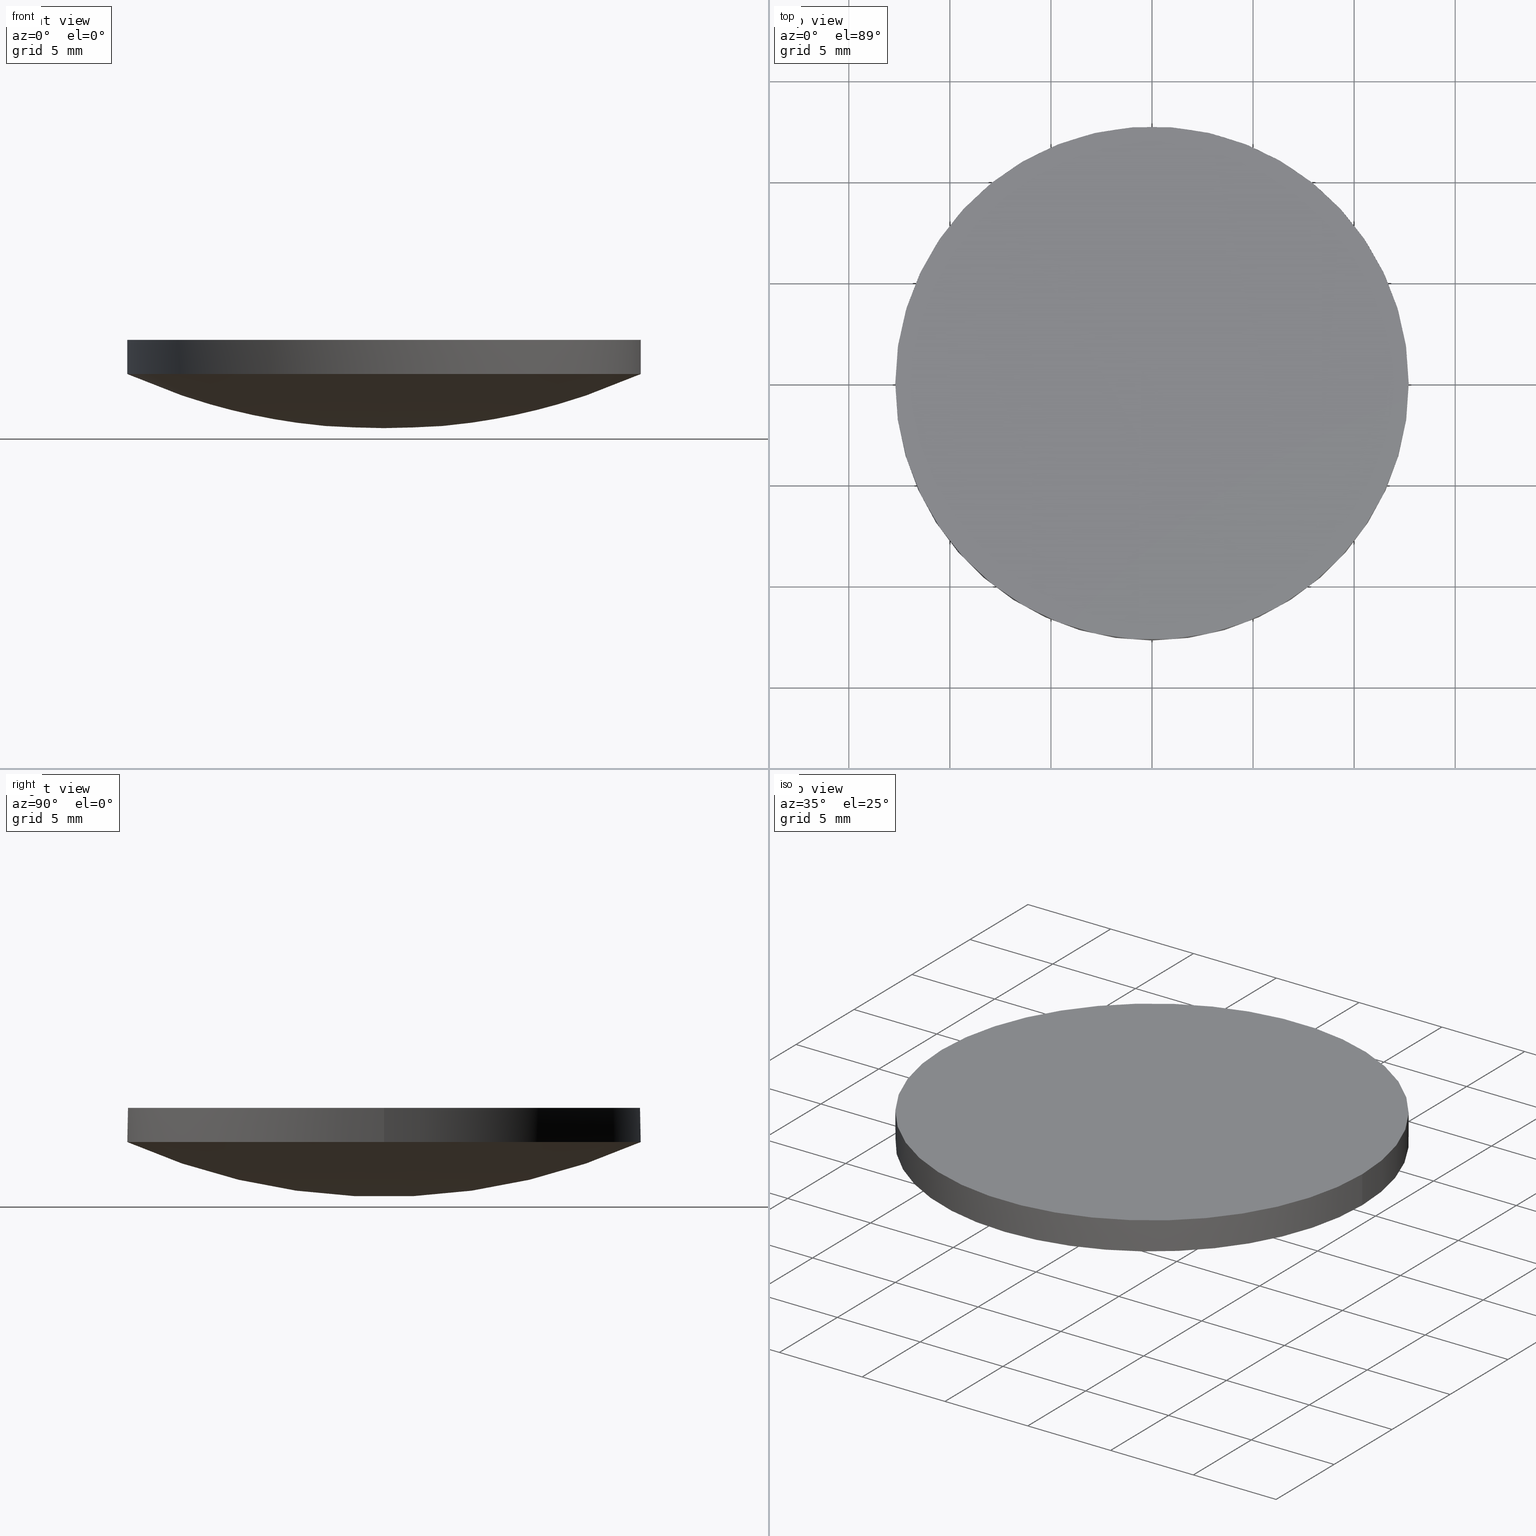
[diagram: canonical four-view strip — front | top / right | iso, engineering-drawing reading convention]
A machine part, canonical four-view strip (front | top / right | iso — engineering-drawing reading convention). The complete STEP part file that produces these views, byte-faithful:
ISO-10303-21;
HEADER;
FILE_DESCRIPTION (( 'STEP AP203' ),
    '1' );
FILE_NAME ('110-0211E BK7 pl-cx 25.4 F60.STEP',
    '2018-12-21T06:50:57',
    ( '' ),
    ( '' ),
    'SwSTEP 2.0',
    'SolidWorks 2017',
    '' );
FILE_SCHEMA (( 'CONFIG_CONTROL_DESIGN' ));
ENDSEC;

DATA;
#1 = PERSON_AND_ORGANIZATION ( #227, #72 ) ;
#2 = CARTESIAN_POINT ( 'NONE',  ( -9.017284531906975400, 4.551507654516060000, -0.02610583074397926400 ) ) ;
#3 =( NAMED_UNIT ( * ) SI_UNIT ( $, .STERADIAN. ) SOLID_ANGLE_UNIT ( ) );
#4 = DATE_TIME_ROLE ( 'classification_date' ) ;
#5 = APPROVAL_DATE_TIME ( #144, #28 ) ;
#6 = CLOSED_SHELL ( 'NONE', ( #155, #9, #137, #101, #168 ) ) ;
#7 = APPLICATION_CONTEXT ( 'configuration controlled 3d designs of mechanical parts and assemblies' ) ;
#8 = PERSON_AND_ORGANIZATION_ROLE ( 'design_owner' ) ;
#9 = ADVANCED_FACE ( 'NONE', ( #156 ), #63, .T. ) ;
#10 = AXIS2_PLACEMENT_3D ( 'NONE', #194, #118, #136 ) ;
#11 = DIRECTION ( 'NONE',  ( 0.0000000000000000000, 0.0000000000000000000, 1.000000000000000000 ) ) ;
#12 = PERSON_AND_ORGANIZATION ( #227, #72 ) ;
#13 = CARTESIAN_POINT ( 'NONE',  ( -4.025857862907046500, -12.84315335437655700, 2.773786638847755900 ) ) ;
#14 = ORIENTED_EDGE ( 'NONE', *, *, #39, .F. ) ;
#15 = CARTESIAN_POINT ( 'NONE',  ( -1.734723475976807100E-015, 4.551507654516056400, -0.9830071144021392800 ) ) ;
#16 = CIRCLE ( 'NONE', #153, 12.69999999999999900 ) ;
#17 = CARTESIAN_POINT ( 'NONE',  ( 3.469446951953614200E-015, 12.84315335437657000, 2.773786638847761700 ) ) ;
#18 = LINE ( 'NONE', #204, #115 ) ;
#19 = CARTESIAN_POINT ( 'NONE',  ( 4.559414760900651200, 4.551507654516051100, -0.9830071144021402800 ) ) ;
#20 = CARTESIAN_POINT ( 'NONE',  ( 4.559414760900649500, -4.551507654516049300, -0.9830071144021426100 ) ) ;
#21 = APPROVAL_ROLE ( '' ) ;
#22 = APPROVAL_PERSON_ORGANIZATION ( #187, #165, #25 ) ;
#23 = FACE_OUTER_BOUND ( 'NONE', #190, .T. ) ;
#24 = EDGE_CURVE ( 'NONE', #171, #135, #214, .T. ) ;
#25 = APPROVAL_ROLE ( '' ) ;
#26 = DATE_AND_TIME ( #124, #230 ) ;
#27 = ORIENTED_EDGE ( 'NONE', *, *, #175, .F. ) ;
#28 = APPROVAL ( #218, 'UNSPECIFIED' ) ;
#29 = ORIENTED_EDGE ( 'NONE', *, *, #175, .T. ) ;
#30 = DESIGN_CONTEXT ( 'detailed design', #97, 'design' ) ;
#31 = EDGE_CURVE ( 'NONE', #60, #202, #120, .T. ) ;
#32 = DIRECTION ( 'NONE',  ( 1.000000000000000000, 0.0000000000000000000, 0.0000000000000000000 ) ) ;
#33 = FACE_OUTER_BOUND ( 'NONE', #158, .T. ) ;
#34 = LOCAL_TIME ( 8, 50, 57.00000000000000000, #170 ) ;
#35 = CARTESIAN_POINT ( 'NONE',  ( 11.63325800064605400, 12.84315335437655900, 5.270916453259492800 ) ) ;
#36 = DIRECTION ( 'NONE',  ( -0.0000000000000000000, -0.0000000000000000000, -1.000000000000000000 ) ) ;
#37 = CARTESIAN_POINT ( 'NONE',  ( 11.63325800064604600, -12.84315335437656300, 5.270916453259489200 ) ) ;
#38 = CALENDAR_DATE ( 2018, 21, 12 ) ;
#39 = EDGE_CURVE ( 'NONE', #202, #103, #74, .T. ) ;
#40 = DATE_TIME_ROLE ( 'creation_date' ) ;
#41 =( BOUNDED_SURFACE ( )  B_SPLINE_SURFACE ( 3, 3, ( 
 ( #196, #112, #179, #37 ),
 ( #178, #20, #73, #216 ),
 ( #57, #19, #93, #195 ),
 ( #92, #234, #148, #35 ) ),
 .UNSPECIFIED., .F., .F., .T. ) 
 B_SPLINE_SURFACE_WITH_KNOTS ( ( 4, 4 ),
 ( 4, 4 ),
 ( 0.0000000000000000000, 1.000000000000000000 ),
 ( 0.0000000000000000000, 1.000000000000000000 ),
 .UNSPECIFIED. ) 
 GEOMETRIC_REPRESENTATION_ITEM ( )  RATIONAL_B_SPLINE_SURFACE ( (
 ( 1.000000000000000000, 0.9851523356659553900, 0.9851523356659553900, 1.000000000000000000),
 ( 0.9405786923982915000, 0.9266132956938071300, 0.9266132956938071300, 0.9405786923982915000),
 ( 0.9405786923982915000, 0.9266132956938071300, 0.9266132956938071300, 0.9405786923982915000),
 ( 1.000000000000000000, 0.9851523356659553900, 0.9851523356659553900, 1.000000000000000000) ) ) 
 REPRESENTATION_ITEM ( '' )  SURFACE ( )  );
#42 = PERSON_AND_ORGANIZATION_ROLE ( 'design_supplier' ) ;
#43 = COORDINATED_UNIVERSAL_TIME_OFFSET ( 2, 0, .AHEAD. ) ;
#44 = AXIS2_PLACEMENT_3D ( 'NONE', #123, #83, #32 ) ;
#45 = APPROVAL_PERSON_ORGANIZATION ( #127, #28, #21 ) ;
#46 = LOCAL_TIME ( 8, 50, 57.00000000000000000, #43 ) ;
#47 = ORIENTED_EDGE ( 'NONE', *, *, #157, .F. ) ;
#48 = DIRECTION ( 'NONE',  ( 1.000000000000000000, 0.0000000000000000000, 0.0000000000000000000 ) ) ;
#49 = PRODUCT_DEFINITION ( 'UNKNOWN', '', #111, #30 ) ;
#50 = PERSON_AND_ORGANIZATION ( #227, #72 ) ;
#51 = EDGE_LOOP ( 'NONE', ( #47, #147, #129, #69, #27 ) ) ;
#52 = DIRECTION ( 'NONE',  ( 0.0000000000000000000, 0.0000000000000000000, 1.000000000000000000 ) ) ;
#53 =( LENGTH_UNIT ( ) NAMED_UNIT ( * ) SI_UNIT ( .MILLI., .METRE. ) );
#54 = CARTESIAN_POINT ( 'NONE',  ( 4.996003610813200500E-016, 2.442490654175340100E-015, 2.709361147626399900 ) ) ;
#55 = CC_DESIGN_PERSON_AND_ORGANIZATION_ASSIGNMENT ( #1, #119, ( #111 ) ) ;
#56 = ORIENTED_EDGE ( 'NONE', *, *, #221, .F. ) ;
#57 = CARTESIAN_POINT ( 'NONE',  ( 9.265560802488689400E-015, 4.551507654516052000, -0.9830071144021401700 ) ) ;
#58 = APPROVAL_STATUS ( 'not_yet_approved' ) ;
#59 = CC_DESIGN_PERSON_AND_ORGANIZATION_ASSIGNMENT ( #79, #8, ( #174 ) ) ;
#60 = VERTEX_POINT ( 'NONE', #228 ) ;
#61 = CC_DESIGN_APPROVAL ( #28, ( #49 ) ) ;
#62 = CARTESIAN_POINT ( 'NONE',  ( 12.69999999999999900, 2.442490654175340100E-015, 4.400000000000000400 ) ) ;
#63 = CYLINDRICAL_SURFACE ( 'NONE', #138, 12.69999999999999900 ) ;
#64 = AXIS2_PLACEMENT_3D ( 'NONE', #159, #52, #149 ) ;
#65 = ORIENTED_EDGE ( 'NONE', *, *, #24, .F. ) ;
#66 = CARTESIAN_POINT ( 'NONE',  ( -9.017284531906979000, -4.551507654516044000, -0.02610583074398273300 ) ) ;
#67 = DIRECTION ( 'NONE',  ( -0.0000000000000000000, -0.0000000000000000000, -1.000000000000000000 ) ) ;
#68 = COORDINATED_UNIVERSAL_TIME_OFFSET ( 2, 0, .AHEAD. ) ;
#69 = ORIENTED_EDGE ( 'NONE', *, *, #117, .F. ) ;
#70 = CC_DESIGN_PERSON_AND_ORGANIZATION_ASSIGNMENT ( #99, #200, ( #176 ) ) ;
#71 = DIRECTION ( 'NONE',  ( -0.0000000000000000000, -0.0000000000000000000, -1.000000000000000000 ) ) ;
#72 = ORGANIZATION ( 'UNSPECIFIED', 'UNSPECIFIED', '' ) ;
#73 = CARTESIAN_POINT ( 'NONE',  ( 9.017284531906982500, -4.551507654516050200, -0.02610583074398489500 ) ) ;
#74 = CIRCLE ( 'NONE', #108, 12.69999999999999900 ) ;
#75 = CARTESIAN_POINT ( 'NONE',  ( -7.962053846506552000, 12.84315335437657200, 3.618708357722064700 ) ) ;
#76 = PLANE ( 'NONE',  #64 ) ;
#77 = PRODUCT_DEFINITION_SHAPE ( 'NONE', 'NONE',  #49 ) ;
#78 = CC_DESIGN_APPROVAL ( #98, ( #176 ) ) ;
#79 = PERSON_AND_ORGANIZATION ( #227, #72 ) ;
#80 = SECURITY_CLASSIFICATION_LEVEL ( 'unclassified' ) ;
#81 = PRODUCT_RELATED_PRODUCT_CATEGORY ( 'detail', '', ( #174 ) ) ;
#82 = CC_DESIGN_DATE_AND_TIME_ASSIGNMENT ( #182, #40, ( #49 ) ) ;
#83 = DIRECTION ( 'NONE',  ( -0.0000000000000000000, -0.0000000000000000000, -1.000000000000000000 ) ) ;
#84 = CARTESIAN_POINT ( 'NONE',  ( 4.996003610813200500E-016, 2.442490654175340100E-015, 2.709361147626399900 ) ) ;
#85 = ORIENTED_EDGE ( 'NONE', *, *, #191, .T. ) ;
#86 = CARTESIAN_POINT ( 'NONE',  ( -4.559414760900645900, -4.551507654516046700, -0.9830071144021413900 ) ) ;
#87 = EDGE_CURVE ( 'NONE', #171, #60, #188, .T. ) ;
#88 = LOCAL_TIME ( 8, 50, 57.00000000000000000, #95 ) ;
#89 = SHAPE_DEFINITION_REPRESENTATION ( #77, #113 ) ;
#90 = DIRECTION ( 'NONE',  ( 1.000000000000000000, 0.0000000000000000000, 0.0000000000000000000 ) ) ;
#91 = CC_DESIGN_PERSON_AND_ORGANIZATION_ASSIGNMENT ( #50, #184, ( #49 ) ) ;
#92 = CARTESIAN_POINT ( 'NONE',  ( 1.107271206032240700E-014, 12.84315335437656300, 2.773786638847756300 ) ) ;
#93 = CARTESIAN_POINT ( 'NONE',  ( 9.017284531906984300, 4.551507654516051100, -0.02610583074398207400 ) ) ;
#94 =( GEOMETRIC_REPRESENTATION_CONTEXT ( 3 ) GLOBAL_UNCERTAINTY_ASSIGNED_CONTEXT ( ( #193 ) ) GLOBAL_UNIT_ASSIGNED_CONTEXT ( ( #53, #96, #3 ) ) REPRESENTATION_CONTEXT ( 'NONE', 'WORKASPACE' ) );
#95 = COORDINATED_UNIVERSAL_TIME_OFFSET ( 2, 0, .AHEAD. ) ;
#96 =( NAMED_UNIT ( * ) PLANE_ANGLE_UNIT ( ) SI_UNIT ( $, .RADIAN. ) );
#97 = APPLICATION_CONTEXT ( 'configuration controlled 3d designs of mechanical parts and assemblies' ) ;
#98 = APPROVAL ( #164, 'UNSPECIFIED' ) ;
#99 = PERSON_AND_ORGANIZATION ( #227, #72 ) ;
#100 = VECTOR ( 'NONE', #143, 1000.000000000000000 ) ;
#101 = ADVANCED_FACE ( 'NONE', ( #23 ), #233, .T. ) ;
#102 =( BOUNDED_SURFACE ( )  B_SPLINE_SURFACE ( 3, 3, ( 
 ( #206, #109, #13, #173 ),
 ( #208, #66, #86, #185 ),
 ( #229, #2, #145, #15 ),
 ( #151, #75, #162, #17 ) ),
 .UNSPECIFIED., .F., .F., .F. ) 
 B_SPLINE_SURFACE_WITH_KNOTS ( ( 4, 4 ),
 ( 4, 4 ),
 ( 0.0000000000000000000, 1.000000000000000000 ),
 ( 0.0000000000000000000, 1.000000000000000000 ),
 .UNSPECIFIED. ) 
 GEOMETRIC_REPRESENTATION_ITEM ( )  RATIONAL_B_SPLINE_SURFACE ( (
 ( 1.000000000000000000, 0.9851523356659553900, 0.9851523356659553900, 1.000000000000000000),
 ( 0.9405786923982912800, 0.9266132956938069000, 0.9266132956938069000, 0.9405786923982912800),
 ( 0.9405786923982912800, 0.9266132956938069000, 0.9266132956938069000, 0.9405786923982912800),
 ( 1.000000000000000000, 0.9851523356659553900, 0.9851523356659553900, 1.000000000000000000) ) ) 
 REPRESENTATION_ITEM ( '' )  SURFACE ( )  );
#103 = VERTEX_POINT ( 'NONE', #62 ) ;
#104 = LOCAL_TIME ( 8, 50, 57.00000000000000000, #68 ) ;
#105 = ORIENTED_EDGE ( 'NONE', *, *, #24, .T. ) ;
#106 = DIRECTION ( 'NONE',  ( -0.0000000000000000000, -0.0000000000000000000, -1.000000000000000000 ) ) ;
#107 = DIRECTION ( 'NONE',  ( -2.334397171259000300E-016, -1.000000000000000000, -2.229721691486898600E-016 ) ) ;
#108 = AXIS2_PLACEMENT_3D ( 'NONE', #167, #106, #48 ) ;
#109 = CARTESIAN_POINT ( 'NONE',  ( -7.962053846506560000, -12.84315335437655700, 3.618708357722058000 ) ) ;
#110 = CIRCLE ( 'NONE', #126, 12.69999999999999900 ) ;
#111 = PRODUCT_DEFINITION_FORMATION_WITH_SPECIFIED_SOURCE ( 'ANY', '', #174, .NOT_KNOWN. ) ;
#112 = CARTESIAN_POINT ( 'NONE',  ( 4.025857862907047400, -12.84315335437656100, 2.773786638847752300 ) ) ;
#113 = ADVANCED_BREP_SHAPE_REPRESENTATION ( '110-0211E BK7 pl-cx 25.4 F60', ( #199, #10 ), #94 ) ;
#114 = AXIS2_PLACEMENT_3D ( 'NONE', #139, #172, #166 ) ;
#115 = VECTOR ( 'NONE', #189, 1000.000000000000000 ) ;
#116 = DIRECTION ( 'NONE',  ( 1.000000000000000000, 0.0000000000000000000, 0.0000000000000000000 ) ) ;
#117 = EDGE_CURVE ( 'NONE', #225, #103, #18, .T. ) ;
#118 = DIRECTION ( 'NONE',  ( 0.0000000000000000000, 0.0000000000000000000, 1.000000000000000000 ) ) ;
#119 = PERSON_AND_ORGANIZATION_ROLE ( 'creator' ) ;
#120 = LINE ( 'NONE', #169, #100 ) ;
#121 = EDGE_LOOP ( 'NONE', ( #154, #105, #29 ) ) ;
#122 = CC_DESIGN_SECURITY_CLASSIFICATION ( #176, ( #111 ) ) ;
#123 = CARTESIAN_POINT ( 'NONE',  ( 4.996003610813200500E-016, 2.442490654175340100E-015, 2.709361147626399900 ) ) ;
#124 = CALENDAR_DATE ( 2018, 21, 12 ) ;
#125 = ORIENTED_EDGE ( 'NONE', *, *, #191, .F. ) ;
#126 = AXIS2_PLACEMENT_3D ( 'NONE', #54, #67, #235 ) ;
#127 = PERSON_AND_ORGANIZATION ( #227, #72 ) ;
#128 = CARTESIAN_POINT ( 'NONE',  ( 12.69999999999999900, 2.442490654175340100E-015, 2.709361147626399900 ) ) ;
#129 = ORIENTED_EDGE ( 'NONE', *, *, #39, .T. ) ;
#130 = CARTESIAN_POINT ( 'NONE',  ( 4.996003610813200500E-016, 2.442490654175340100E-015, 4.400000000000000400 ) ) ;
#131 = CARTESIAN_POINT ( 'NONE',  ( 4.996003610813200500E-016, 2.442490654175340100E-015, 2.709361147626399900 ) ) ;
#132 = PERSON_AND_ORGANIZATION ( #227, #72 ) ;
#133 = APPROVAL_ROLE ( '' ) ;
#134 = AXIS2_PLACEMENT_3D ( 'NONE', #209, #71, #90 ) ;
#135 = VERTEX_POINT ( 'NONE', #142 ) ;
#136 = DIRECTION ( 'NONE',  ( 1.000000000000000000, 0.0000000000000000000, 0.0000000000000000000 ) ) ;
#137 = ADVANCED_FACE ( 'NONE', ( #197 ), #102, .T. ) ;
#138 = AXIS2_PLACEMENT_3D ( 'NONE', #84, #11, #186 ) ;
#139 = CARTESIAN_POINT ( 'NONE',  ( 4.996003610813200500E-016, 2.442490654175340100E-015, 2.709361147626399900 ) ) ;
#140 = COORDINATED_UNIVERSAL_TIME_OFFSET ( 2, 0, .AHEAD. ) ;
#141 = ORIENTED_EDGE ( 'NONE', *, *, #157, .T. ) ;
#142 = CARTESIAN_POINT ( 'NONE',  ( 1.104149714745860900E-014, 12.69999999999999600, 2.709361147626402100 ) ) ;
#143 = DIRECTION ( 'NONE',  ( 0.0000000000000000000, 0.0000000000000000000, 1.000000000000000000 ) ) ;
#144 = DATE_AND_TIME ( #38, #104 ) ;
#145 = CARTESIAN_POINT ( 'NONE',  ( -4.559414760900645900, 4.551507654516059100, -0.9830071144021376200 ) ) ;
#146 = APPROVAL_DATE_TIME ( #26, #165 ) ;
#147 = ORIENTED_EDGE ( 'NONE', *, *, #31, .T. ) ;
#148 = CARTESIAN_POINT ( 'NONE',  ( 7.962053846506566200, 12.84315335437656100, 3.618708357722058900 ) ) ;
#149 = DIRECTION ( 'NONE',  ( 1.000000000000000000, 0.0000000000000000000, -0.0000000000000000000 ) ) ;
#150 = EDGE_LOOP ( 'NONE', ( #65, #220, #141 ) ) ;
#151 = CARTESIAN_POINT ( 'NONE',  ( -11.63325800064603800, 12.84315335437657200, 5.270916453259499900 ) ) ;
#152 = APPLICATION_PROTOCOL_DEFINITION ( 'international standard', 'config_control_design', 1994, #97 ) ;
#153 = AXIS2_PLACEMENT_3D ( 'NONE', #130, #36, #161 ) ;
#154 = ORIENTED_EDGE ( 'NONE', *, *, #221, .T. ) ;
#155 = ADVANCED_FACE ( 'NONE', ( #160 ), #41, .T. ) ;
#156 = FACE_OUTER_BOUND ( 'NONE', #51, .T. ) ;
#157 = EDGE_CURVE ( 'NONE', #60, #135, #183, .T. ) ;
#158 = EDGE_LOOP ( 'NONE', ( #125, #14 ) ) ;
#159 = CARTESIAN_POINT ( 'NONE',  ( 0.0000000000000000000, 26.11199999999999800, 4.400000000000000400 ) ) ;
#160 = FACE_OUTER_BOUND ( 'NONE', #121, .T. ) ;
#161 = DIRECTION ( 'NONE',  ( 1.000000000000000000, 0.0000000000000000000, 0.0000000000000000000 ) ) ;
#162 = CARTESIAN_POINT ( 'NONE',  ( -4.025857862907037600, 12.84315335437657200, 2.773786638847762100 ) ) ;
#163 = ORIENTED_EDGE ( 'NONE', *, *, #117, .T. ) ;
#164 = APPROVAL_STATUS ( 'not_yet_approved' ) ;
#165 = APPROVAL ( #58, 'UNSPECIFIED' ) ;
#166 = DIRECTION ( 'NONE',  ( 1.000000000000000000, 0.0000000000000000000, 0.0000000000000000000 ) ) ;
#167 = CARTESIAN_POINT ( 'NONE',  ( 4.996003610813200500E-016, 2.442490654175340100E-015, 4.400000000000000400 ) ) ;
#168 = ADVANCED_FACE ( 'NONE', ( #33 ), #76, .T. ) ;
#169 = CARTESIAN_POINT ( 'NONE',  ( -12.69999999999999900, 3.997792089092478900E-015, 2.709361147626399900 ) ) ;
#170 = COORDINATED_UNIVERSAL_TIME_OFFSET ( 2, 0, .AHEAD. ) ;
#171 = VERTEX_POINT ( 'NONE', #212 ) ;
#172 = DIRECTION ( 'NONE',  ( 0.0000000000000000000, 0.0000000000000000000, 1.000000000000000000 ) ) ;
#173 = CARTESIAN_POINT ( 'NONE',  ( -5.204170427930421300E-015, -12.84315335437655900, 2.773786638847754600 ) ) ;
#174 = PRODUCT ( '110-0211E BK7 pl-cx 25.4 F60', '110-0211E BK7 pl-cx 25.4 F60', '', ( #201 ) ) ;
#175 = EDGE_CURVE ( 'NONE', #135, #225, #110, .T. ) ;
#176 = SECURITY_CLASSIFICATION ( '', '', #80 ) ;
#177 = CARTESIAN_POINT ( 'NONE',  ( -12.69999999999999900, 3.997792089092478900E-015, 4.400000000000000400 ) ) ;
#178 = CARTESIAN_POINT ( 'NONE',  ( 7.140555483755498000E-015, -4.551507654516045800, -0.9830071144021429500 ) ) ;
#179 = CARTESIAN_POINT ( 'NONE',  ( 7.962053846506560000, -12.84315335437656100, 3.618708357722055300 ) ) ;
#180 = APPROVAL_PERSON_ORGANIZATION ( #132, #98, #133 ) ;
#181 = APPLICATION_PROTOCOL_DEFINITION ( 'international standard', 'config_control_design', 1994, #7 ) ;
#182 = DATE_AND_TIME ( #213, #88 ) ;
#183 = CIRCLE ( 'NONE', #198, 12.69999999999999900 ) ;
#184 = PERSON_AND_ORGANIZATION_ROLE ( 'creator' ) ;
#185 = CARTESIAN_POINT ( 'NONE',  ( -1.734723475976807100E-015, -4.551507654516046700, -0.9830071144021425000 ) ) ;
#186 = DIRECTION ( 'NONE',  ( 1.000000000000000000, 0.0000000000000000000, 0.0000000000000000000 ) ) ;
#187 = PERSON_AND_ORGANIZATION ( #227, #72 ) ;
#188 = CIRCLE ( 'NONE', #44, 12.69999999999999900 ) ;
#189 = DIRECTION ( 'NONE',  ( 0.0000000000000000000, 0.0000000000000000000, 1.000000000000000000 ) ) ;
#190 = EDGE_LOOP ( 'NONE', ( #210, #207, #56, #163, #85 ) ) ;
#191 = EDGE_CURVE ( 'NONE', #103, #202, #16, .T. ) ;
#192 = CALENDAR_DATE ( 2018, 21, 12 ) ;
#193 = UNCERTAINTY_MEASURE_WITH_UNIT (LENGTH_MEASURE( 1.000000000000000100E-005 ), #53, 'distance_accuracy_value', 'NONE');
#194 = CARTESIAN_POINT ( 'NONE',  ( 0.0000000000000000000, 0.0000000000000000000, 0.0000000000000000000 ) ) ;
#195 = CARTESIAN_POINT ( 'NONE',  ( 13.17504245100463900, 4.551507654516048400, 1.845073489390613800 ) ) ;
#196 = CARTESIAN_POINT ( 'NONE',  ( 5.076507888221970300E-015, -12.84315335437655900, 2.773786638847752800 ) ) ;
#197 = FACE_OUTER_BOUND ( 'NONE', #150, .T. ) ;
#198 = AXIS2_PLACEMENT_3D ( 'NONE', #131, #215, #116 ) ;
#199 = MANIFOLD_SOLID_BREP ( 'Imported1', #6 ) ;
#200 = PERSON_AND_ORGANIZATION_ROLE ( 'classification_officer' ) ;
#201 = MECHANICAL_CONTEXT ( 'NONE', #7, 'mechanical' ) ;
#202 = VERTEX_POINT ( 'NONE', #177 ) ;
#203 = CIRCLE ( 'NONE', #134, 12.69999999999999900 ) ;
#204 = CARTESIAN_POINT ( 'NONE',  ( 12.69999999999999900, 2.442490654175340100E-015, 2.709361147626399900 ) ) ;
#205 = CARTESIAN_POINT ( 'NONE',  ( 7.105427357601000300E-015, 0.0000000000000000000, 31.12000000000000100 ) ) ;
#206 = CARTESIAN_POINT ( 'NONE',  ( -11.63325800064604500, -12.84315335437655700, 5.270916453259492800 ) ) ;
#207 = ORIENTED_EDGE ( 'NONE', *, *, #87, .F. ) ;
#208 = CARTESIAN_POINT ( 'NONE',  ( -13.17504245100463800, -4.551507654516043100, 1.845073489390614900 ) ) ;
#209 = CARTESIAN_POINT ( 'NONE',  ( 4.996003610813200500E-016, 2.442490654175340100E-015, 2.709361147626399900 ) ) ;
#210 = ORIENTED_EDGE ( 'NONE', *, *, #31, .F. ) ;
#211 = CC_DESIGN_DATE_AND_TIME_ASSIGNMENT ( #222, #4, ( #176 ) ) ;
#212 = CARTESIAN_POINT ( 'NONE',  ( 5.112128332460749800E-015, -12.69999999999999600, 2.709361147626402100 ) ) ;
#213 = CALENDAR_DATE ( 2018, 21, 12 ) ;
#214 = CIRCLE ( 'NONE', #224, 31.12000000000000100 ) ;
#215 = DIRECTION ( 'NONE',  ( -0.0000000000000000000, -0.0000000000000000000, -1.000000000000000000 ) ) ;
#216 = CARTESIAN_POINT ( 'NONE',  ( 13.17504245100463800, -4.551507654516050200, 1.845073489390611600 ) ) ;
#217 = APPROVAL_DATE_TIME ( #232, #98 ) ;
#218 = APPROVAL_STATUS ( 'not_yet_approved' ) ;
#219 = CC_DESIGN_APPROVAL ( #165, ( #111 ) ) ;
#220 = ORIENTED_EDGE ( 'NONE', *, *, #87, .T. ) ;
#221 = EDGE_CURVE ( 'NONE', #225, #171, #203, .T. ) ;
#222 = DATE_AND_TIME ( #223, #46 ) ;
#223 = CALENDAR_DATE ( 2018, 21, 12 ) ;
#224 = AXIS2_PLACEMENT_3D ( 'NONE', #205, #226, #107 ) ;
#225 = VERTEX_POINT ( 'NONE', #128 ) ;
#226 = DIRECTION ( 'NONE',  ( 1.000000000000000000, -2.334397171258999800E-016, 3.419090247868619700E-017 ) ) ;
#227 = PERSON ( 'UNSPECIFIED', 'UNSPECIFIED', 'UNSPECIFIED', ('UNSPECIFIED'), ('UNSPECIFIED'), ('UNSPECIFIED') ) ;
#228 = CARTESIAN_POINT ( 'NONE',  ( -12.69999999999999900, 3.997792089092478900E-015, 2.709361147626399900 ) ) ;
#229 = CARTESIAN_POINT ( 'NONE',  ( -13.17504245100463200, 4.551507654516059100, 1.845073489390618000 ) ) ;
#230 = LOCAL_TIME ( 8, 50, 57.00000000000000000, #140 ) ;
#231 = CC_DESIGN_PERSON_AND_ORGANIZATION_ASSIGNMENT ( #12, #42, ( #111 ) ) ;
#232 = DATE_AND_TIME ( #192, #34 ) ;
#233 = CYLINDRICAL_SURFACE ( 'NONE', #114, 12.69999999999999900 ) ;
#234 = CARTESIAN_POINT ( 'NONE',  ( 4.025857862907053600, 12.84315335437656100, 2.773786638847755900 ) ) ;
#235 = DIRECTION ( 'NONE',  ( 1.000000000000000000, 8.881784197001252300E-016, 0.0000000000000000000 ) ) ;
ENDSEC;
END-ISO-10303-21;
